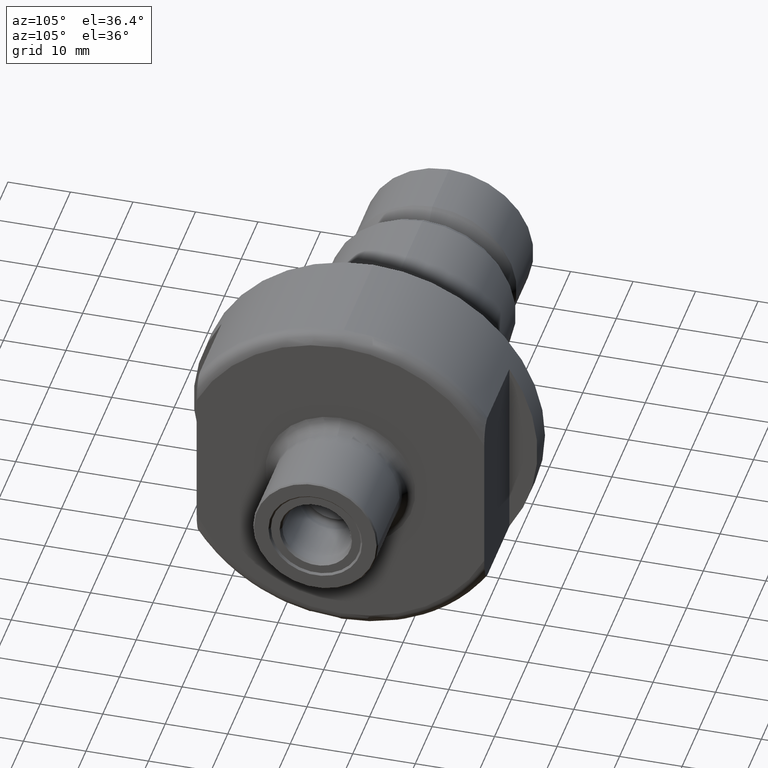
[diagram: clean part render]
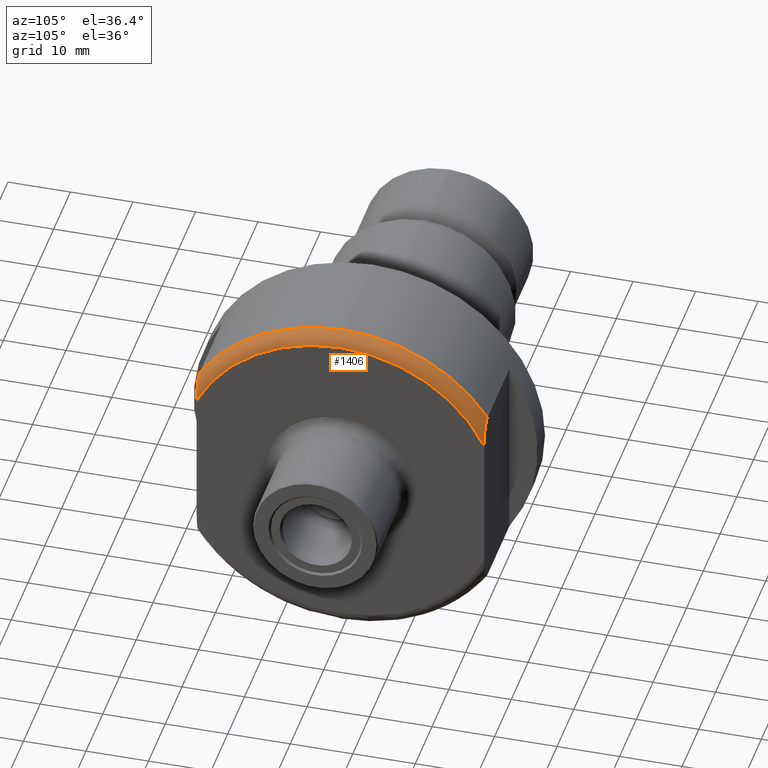
[diagram: same view with one face highlighted and labeled with its STEP entity id]
A machine part, auxiliary view. The second image highlights one B-rep face of the part: STEP entity #1406.
In plain terms, the highlighted toroidal blend (fillet) surface has major radius 25.5 mm and minor (blend) radius 2 mm.
Its self-contained STEP definition (entity closure, byte-faithful):
#17 = CARTESIAN_POINT ( 'NONE',  ( 18.10309319328419900, 23.00000000000000700, 15.07481343168134400 ) ) ;
#44 = CARTESIAN_POINT ( 'NONE',  ( 19.49975083182035400, -23.00000000000000400, 13.81556502050049000 ) ) ;
#119 = CARTESIAN_POINT ( 'NONE',  ( 17.99999999999980500, 23.00000000000000400, 15.07481343168132200 ) ) ;
#131 = CARTESIAN_POINT ( 'NONE',  ( 18.00000000000189400, -23.00000000000000400, 15.07481343168132400 ) ) ;
#172 = CIRCLE ( 'NONE', #1430, 25.49999999999999600 ) ;
#178 = CIRCLE ( 'NONE', #1127, 27.49999999999999600 ) ;
#179 = CARTESIAN_POINT ( 'NONE',  ( 18.40670108926599000, 23.00000000000000700, 15.00319163175831600 ) ) ;
#181 = EDGE_CURVE ( 'NONE', #1103, #1527, #934, .T. ) ;
#199 = CARTESIAN_POINT ( 'NONE',  ( 18.77277518587283800, 23.00000000000000400, 14.80746969711873200 ) ) ;
#233 = TOROIDAL_SURFACE ( 'NONE', #321, 25.49999999999999600, 2.000000000000000000 ) ;
#235 = FACE_OUTER_BOUND ( 'NONE', #1417, .T. ) ;
#266 = CARTESIAN_POINT ( 'NONE',  ( 18.50347826175239500, 23.00000000000000000, 14.96123748307373100 ) ) ;
#278 = CARTESIAN_POINT ( 'NONE',  ( 19.19613181924561100, 23.00000000000001100, 14.35278119678494400 ) ) ;
#315 = CARTESIAN_POINT ( 'NONE',  ( 20.00000000000000400, 23.00000000000000400, 11.01135777277260200 ) ) ;
#321 = AXIS2_PLACEMENT_3D ( 'NONE', #1370, #1322, #751 ) ;
#333 = CARTESIAN_POINT ( 'NONE',  ( 18.92948022645191800, 23.00000000000000000, 14.66628810351917300 ) ) ;
#349 = CARTESIAN_POINT ( 'NONE',  ( 18.20790993291888100, 23.00000000000000400, 15.05969603918965800 ) ) ;
#366 = CARTESIAN_POINT ( 'NONE',  ( 19.50116846992983400, 23.00000000000000700, 13.81271455536282400 ) ) ;
#501 = CARTESIAN_POINT ( 'NONE',  ( 18.00000000000000400, 0.0000000000000000000, 0.0000000000000000000 ) ) ;
#505 = DIRECTION ( 'NONE',  ( 1.000000000000000000, -0.0000000000000000000, -0.0000000000000000000 ) ) ;
#508 = B_SPLINE_CURVE_WITH_KNOTS ( 'NONE', 3,
 ( #119, #17, #349, #179, #266, #199, #333, #278, #672, #366, #703, #600, #867, #781, #513, #918 ),
 .UNSPECIFIED., .F., .F.,
 ( 4, 2, 2, 2, 2, 2, 2, 4 ),
 ( 0.01168602655559952900, 0.01199717062771399700, 0.01230831469982846700, 0.01293060284405740700, 0.01355289098828634700, 0.01417517913251528800, 0.01541975542097316800, 0.01666433170943105000 ),
 .UNSPECIFIED. ) ;
#509 = DIRECTION ( 'NONE',  ( 0.0000000000000000000, 0.0000000000000000000, -1.000000000000000000 ) ) ;
#513 = CARTESIAN_POINT ( 'NONE',  ( 20.00000000000000400, 23.00000000000000700, 11.41921289493595100 ) ) ;
#536 = CARTESIAN_POINT ( 'NONE',  ( 18.00000000000000400, 3.367778697655220900E-015, 27.49999999999999600 ) ) ;
#600 = CARTESIAN_POINT ( 'NONE',  ( 19.78164105491201100, 23.00000000000000700, 13.04355963206370300 ) ) ;
#607 = DIRECTION ( 'NONE',  ( 1.000000000000000000, -0.0000000000000000000, -0.0000000000000000000 ) ) ;
#672 = CARTESIAN_POINT ( 'NONE',  ( 19.30842254611381000, 23.00000000000000400, 14.17861155794875200 ) ) ;
#703 = CARTESIAN_POINT ( 'NONE',  ( 19.58028912560989500, 23.00000000000000000, 13.62362849430962800 ) ) ;
#751 = DIRECTION ( 'NONE',  ( 0.0000000000000000000, 0.0000000000000000000, -1.000000000000000000 ) ) ;
#781 = CARTESIAN_POINT ( 'NONE',  ( 19.97731363555821800, 23.00000000000000700, 11.82603727832821000 ) ) ;
#857 = CARTESIAN_POINT ( 'NONE',  ( 19.57939703465686400, -23.00000000000000000, 13.62614597096872200 ) ) ;
#867 = CARTESIAN_POINT ( 'NONE',  ( 19.86840731975498600, 23.00000000000000700, 12.63679944195194700 ) ) ;
#918 = CARTESIAN_POINT ( 'NONE',  ( 20.00000000000000400, 23.00000000000000400, 11.01135777277260200 ) ) ;
#934 = CIRCLE ( 'NONE', #1864, 27.49999999999999600 ) ;
#937 = CARTESIAN_POINT ( 'NONE',  ( 19.30866780863664500, -23.00000000000001100, 14.17798567784449100 ) ) ;
#944 = CARTESIAN_POINT ( 'NONE',  ( 20.00000000000000400, -23.00000000000000700, 11.01135777277259600 ) ) ;
#955 = CARTESIAN_POINT ( 'NONE',  ( 19.97673470551086400, -23.00000000000000400, 11.83226176931197100 ) ) ;
#1022 = CARTESIAN_POINT ( 'NONE',  ( 18.99466400060617800, -23.00000000000001100, 14.58954518869556000 ) ) ;
#1027 = CARTESIAN_POINT ( 'NONE',  ( 20.00000000000000400, -23.00000000000000700, 11.01135777277259600 ) ) ;
#1045 = B_SPLINE_CURVE_WITH_KNOTS ( 'NONE', 3,
 ( #944, #1563, #955, #1722, #1783, #857, #44, #937, #1981, #1022, #1058, #1141, #1482, #1202, #2072, #1496 ),
 .UNSPECIFIED., .F., .F.,
 ( 4, 2, 2, 2, 2, 2, 2, 4 ),
 ( 0.006951649921524907400, 0.008195418377269080000, 0.009439186833013252600, 0.01006107106088533600, 0.01068295528875742000, 0.01099389740269346400, 0.01130483951662950700, 0.01192672374450159300 ),
 .UNSPECIFIED. ) ;
#1058 = CARTESIAN_POINT ( 'NONE',  ( 18.92251312334899900, -23.00000000000000400, 14.66350999254254400 ) ) ;
#1103 = VERTEX_POINT ( 'NONE', #1410 ) ;
#1127 = AXIS2_PLACEMENT_3D ( 'NONE', #1235, #1307, #1804 ) ;
#1141 = CARTESIAN_POINT ( 'NONE',  ( 18.76557090369422600, -23.00000000000000400, 14.79896582963277800 ) ) ;
#1202 = CARTESIAN_POINT ( 'NONE',  ( 18.41276295267906700, -23.00000000000000700, 15.01265877812061700 ) ) ;
#1235 = CARTESIAN_POINT ( 'NONE',  ( 18.00000000000000400, 0.0000000000000000000, 0.0000000000000000000 ) ) ;
#1307 = DIRECTION ( 'NONE',  ( 1.000000000000000000, -0.0000000000000000000, -0.0000000000000000000 ) ) ;
#1322 = DIRECTION ( 'NONE',  ( 1.000000000000000000, -0.0000000000000000000, -0.0000000000000000000 ) ) ;
#1336 = DIRECTION ( 'NONE',  ( 0.0000000000000000000, 0.0000000000000000000, -1.000000000000000000 ) ) ;
#1370 = CARTESIAN_POINT ( 'NONE',  ( 18.00000000000000400, 0.0000000000000000000, 0.0000000000000000000 ) ) ;
#1376 = VERTEX_POINT ( 'NONE', #1027 ) ;
#1406 = ADVANCED_FACE ( 'NONE', ( #235 ), #233, .T. ) ;
#1410 = CARTESIAN_POINT ( 'NONE',  ( 17.99999999999980500, 23.00000000000000400, 15.07481343168132200 ) ) ;
#1417 = EDGE_LOOP ( 'NONE', ( #1831, #1834, #2087, #1751, #1749 ) ) ;
#1430 = AXIS2_PLACEMENT_3D ( 'NONE', #2094, #607, #1336 ) ;
#1436 = EDGE_CURVE ( 'NONE', #1527, #1748, #178, .T. ) ;
#1449 = EDGE_CURVE ( 'NONE', #1376, #1748, #1045, .T. ) ;
#1455 = EDGE_CURVE ( 'NONE', #1685, #1376, #172, .T. ) ;
#1464 = EDGE_CURVE ( 'NONE', #1103, #1685, #508, .T. ) ;
#1482 = CARTESIAN_POINT ( 'NONE',  ( 18.68054135998246700, -23.00000000000000000, 14.86032030752730100 ) ) ;
#1496 = CARTESIAN_POINT ( 'NONE',  ( 18.00000000000189400, -23.00000000000000400, 15.07481343168132400 ) ) ;
#1527 = VERTEX_POINT ( 'NONE', #536 ) ;
#1563 = CARTESIAN_POINT ( 'NONE',  ( 20.00000000000000700, -23.00000000000001100, 11.42160053555359200 ) ) ;
#1685 = VERTEX_POINT ( 'NONE', #315 ) ;
#1722 = CARTESIAN_POINT ( 'NONE',  ( 19.86768676068869900, -23.00000000000000400, 12.64022610579312700 ) ) ;
#1748 = VERTEX_POINT ( 'NONE', #131 ) ;
#1749 = ORIENTED_EDGE ( 'NONE', *, *, #1436, .T. ) ;
#1751 = ORIENTED_EDGE ( 'NONE', *, *, #181, .T. ) ;
#1783 = CARTESIAN_POINT ( 'NONE',  ( 19.78303206525981800, -23.00000000000000000, 13.03965720316765500 ) ) ;
#1804 = DIRECTION ( 'NONE',  ( 0.0000000000000000000, 0.0000000000000000000, -1.000000000000000000 ) ) ;
#1831 = ORIENTED_EDGE ( 'NONE', *, *, #1449, .F. ) ;
#1834 = ORIENTED_EDGE ( 'NONE', *, *, #1455, .F. ) ;
#1864 = AXIS2_PLACEMENT_3D ( 'NONE', #501, #505, #509 ) ;
#1981 = CARTESIAN_POINT ( 'NONE',  ( 19.19618999502093000, -23.00000000000000400, 14.35292098294169700 ) ) ;
#2072 = CARTESIAN_POINT ( 'NONE',  ( 18.20762431344789100, -23.00000000000001100, 15.07481343168111300 ) ) ;
#2087 = ORIENTED_EDGE ( 'NONE', *, *, #1464, .F. ) ;
#2094 = CARTESIAN_POINT ( 'NONE',  ( 20.00000000000000400, 0.0000000000000000000, 0.0000000000000000000 ) ) ;